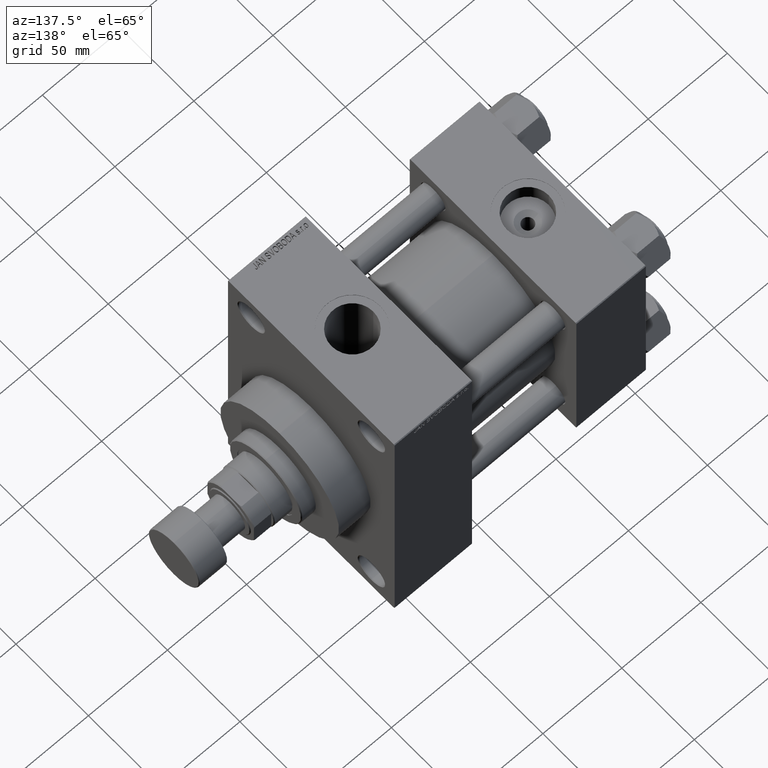
[diagram: clean part render]
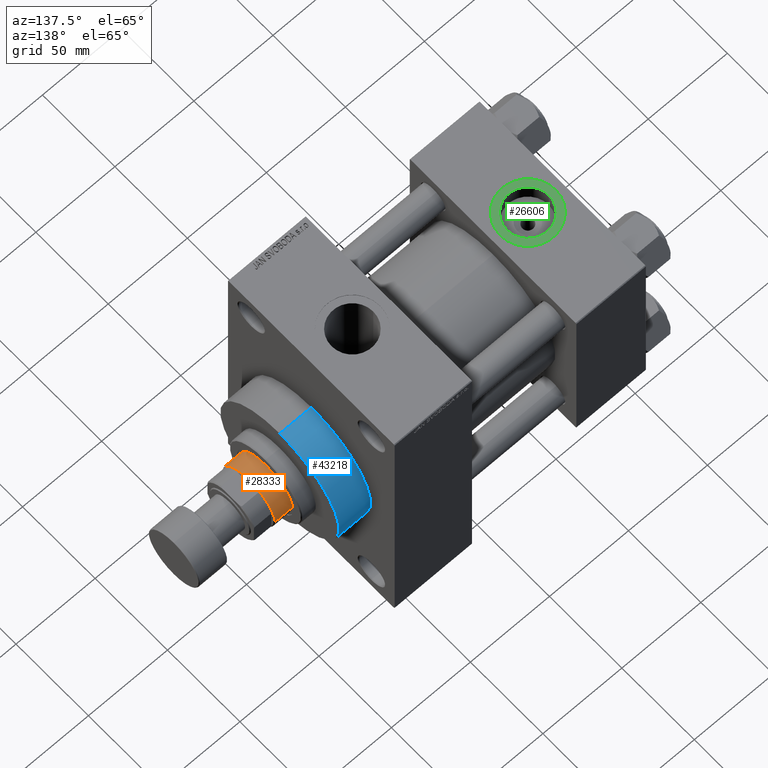
[diagram: same view with three faces highlighted in distinct colors, each labeled with its STEP entity id]
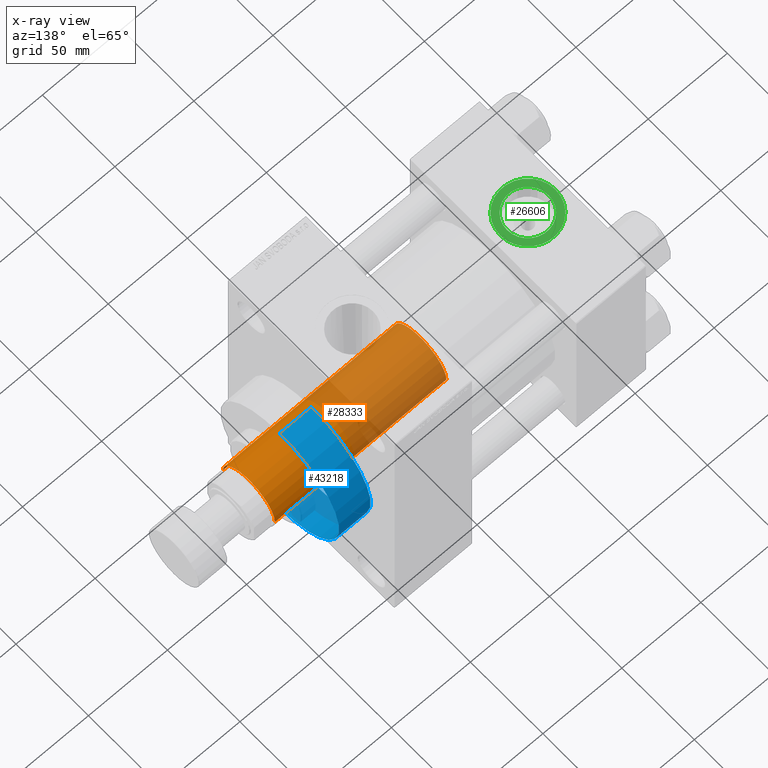
[diagram: x-ray of the same camera — body ghosted, the three highlighted faces saturated]
A machine part, auxiliary view with three faces highlighted in distinct colors.
The next image is the same camera in x-ray (body ghosted, the three faces saturated) — at least one of them is partly hidden behind the body in this view.
Their STEP definitions:

[orange] entity #28333 — the highlighted cylindrical surface (partial cylindrical patch) has radius 18 mm, axis along (-1, 0, 0).
#405 = AXIS2_PLACEMENT_3D ( 'NONE', #32501, #47346, #9447 ) ;
#2609 = EDGE_CURVE ( 'NONE', #6386, #29104, #22443, .T. ) ;
#2696 = CARTESIAN_POINT ( 'NONE',  ( 18.00000000000000000, 2.204364238465235428E-15, 154.4999999999999716 ) ) ;
#3330 = VERTEX_POINT ( 'NONE', #17178 ) ;
#6386 = VERTEX_POINT ( 'NONE', #21286 ) ;
#7199 = CARTESIAN_POINT ( 'NONE',  ( 0.000000000000000000, 0.000000000000000000, 46.00000000000000000 ) ) ;
#8961 = EDGE_CURVE ( 'NONE', #16678, #29104, #24636, .T. ) ;
#9447 = DIRECTION ( 'NONE',  ( -1.000000000000000000, 0.000000000000000000, 0.000000000000000000 ) ) ;
#9562 = DIRECTION ( 'NONE',  ( 0.000000000000000000, 0.000000000000000000, -1.000000000000000000 ) ) ;
#10032 = CARTESIAN_POINT ( 'NONE',  ( 0.000000000000000000, 0.000000000000000000, 154.4999999999999716 ) ) ;
#11083 = DIRECTION ( 'NONE',  ( 1.000000000000000000, 0.000000000000000000, 0.000000000000000000 ) ) ;
#13921 = DIRECTION ( 'NONE',  ( 1.000000000000000000, 0.000000000000000000, 0.000000000000000000 ) ) ;
#14223 = CARTESIAN_POINT ( 'NONE',  ( -18.00000000000000000, 0.000000000000000000, 155.0000000000000000 ) ) ;
#15757 = AXIS2_PLACEMENT_3D ( 'NONE', #10032, #9562, #13921 ) ;
#16678 = VERTEX_POINT ( 'NONE', #2696 ) ;
#17178 = CARTESIAN_POINT ( 'NONE',  ( -18.00000000000000000, 0.000000000000000000, 154.4999999999999716 ) ) ;
#20501 = CARTESIAN_POINT ( 'NONE',  ( 18.00000000000000000, 2.204364238465235428E-15, 155.0000000000000000 ) ) ;
#21286 = CARTESIAN_POINT ( 'NONE',  ( -18.00000000000000000, 0.000000000000000000, 46.00000000000000000 ) ) ;
#22443 = CIRCLE ( 'NONE', #39560, 18.00000000000000000 ) ;
#22510 = EDGE_CURVE ( 'NONE', #3330, #6386, #39324, .T. ) ;
#22625 = EDGE_LOOP ( 'NONE', ( #30221, #47905, #40308, #29988 ) ) ;
#22740 = EDGE_CURVE ( 'NONE', #16678, #3330, #32873, .T. ) ;
#24636 = LINE ( 'NONE', #20501, #47295 ) ;
#25353 = DIRECTION ( 'NONE',  ( -0.000000000000000000, -0.000000000000000000, -1.000000000000000000 ) ) ;
#28333 = ADVANCED_FACE ( 'NONE', ( #31610 ), #42813, .T. ) ;
#29001 = VECTOR ( 'NONE', #32033, 1000.000000000000000 ) ;
#29104 = VERTEX_POINT ( 'NONE', #42231 ) ;
#29824 = DIRECTION ( 'NONE',  ( 0.000000000000000000, 0.000000000000000000, 1.000000000000000000 ) ) ;
#29988 = ORIENTED_EDGE ( 'NONE', *, *, #2609, .T. ) ;
#30221 = ORIENTED_EDGE ( 'NONE', *, *, #8961, .F. ) ;
#31610 = FACE_OUTER_BOUND ( 'NONE', #22625, .T. ) ;
#32033 = DIRECTION ( 'NONE',  ( -0.000000000000000000, -0.000000000000000000, -1.000000000000000000 ) ) ;
#32501 = CARTESIAN_POINT ( 'NONE',  ( 0.000000000000000000, 0.000000000000000000, 155.0000000000000000 ) ) ;
#32873 = CIRCLE ( 'NONE', #15757, 18.00000000000000000 ) ;
#39324 = LINE ( 'NONE', #14223, #29001 ) ;
#39560 = AXIS2_PLACEMENT_3D ( 'NONE', #7199, #29824, #11083 ) ;
#40308 = ORIENTED_EDGE ( 'NONE', *, *, #22510, .T. ) ;
#42231 = CARTESIAN_POINT ( 'NONE',  ( 18.00000000000000000, 2.204364238465235428E-15, 46.00000000000000000 ) ) ;
#42813 = CYLINDRICAL_SURFACE ( 'NONE', #405, 18.00000000000000000 ) ;
#47295 = VECTOR ( 'NONE', #25353, 1000.000000000000000 ) ;
#47346 = DIRECTION ( 'NONE',  ( -0.000000000000000000, -0.000000000000000000, -1.000000000000000000 ) ) ;
#47905 = ORIENTED_EDGE ( 'NONE', *, *, #22740, .T. ) ;

[blue] entity #43218 — the highlighted cylindrical surface (partial cylindrical patch) has radius 41 mm, axis along (-1, -0, -0).
#1557 = CARTESIAN_POINT ( 'NONE',  ( 159.0000000000000000, 5.021051876504148963E-15, -41.00000000000000000 ) ) ;
#3089 = CARTESIAN_POINT ( 'NONE',  ( 159.0000000000000000, 0.000000000000000000, 0.000000000000000000 ) ) ;
#3569 = DIRECTION ( 'NONE',  ( 0.000000000000000000, 0.000000000000000000, -1.000000000000000000 ) ) ;
#3627 = EDGE_CURVE ( 'NONE', #8068, #28366, #47075, .T. ) ;
#5842 = VERTEX_POINT ( 'NONE', #46277 ) ;
#5865 = DIRECTION ( 'NONE',  ( -1.000000000000000000, -0.000000000000000000, -0.000000000000000000 ) ) ;
#6728 = DIRECTION ( 'NONE',  ( 1.000000000000000000, 0.000000000000000000, 0.000000000000000000 ) ) ;
#7125 = VERTEX_POINT ( 'NONE', #9247 ) ;
#8068 = VERTEX_POINT ( 'NONE', #41724 ) ;
#8912 = CIRCLE ( 'NONE', #14362, 41.00000000000000000 ) ;
#9247 = CARTESIAN_POINT ( 'NONE',  ( 179.0000000000000000, 0.000000000000000000, 41.00000000000000000 ) ) ;
#9907 = AXIS2_PLACEMENT_3D ( 'NONE', #28241, #5865, #24106 ) ;
#14184 = ORIENTED_EDGE ( 'NONE', *, *, #3627, .T. ) ;
#14362 = AXIS2_PLACEMENT_3D ( 'NONE', #33749, #44475, #37633 ) ;
#15887 = VECTOR ( 'NONE', #46431, 1000.000000000000000 ) ;
#17425 = LINE ( 'NONE', #46918, #15887 ) ;
#18956 = ORIENTED_EDGE ( 'NONE', *, *, #24938, .T. ) ;
#24106 = DIRECTION ( 'NONE',  ( 0.000000000000000000, 0.000000000000000000, 1.000000000000000000 ) ) ;
#24901 = CARTESIAN_POINT ( 'NONE',  ( 179.0000000000000000, 5.021051876504148963E-15, -41.00000000000000000 ) ) ;
#24938 = EDGE_CURVE ( 'NONE', #28366, #5842, #33744, .T. ) ;
#26608 = EDGE_CURVE ( 'NONE', #8068, #7125, #8912, .T. ) ;
#28241 = CARTESIAN_POINT ( 'NONE',  ( 179.0000000000000000, 0.000000000000000000, 0.000000000000000000 ) ) ;
#28366 = VERTEX_POINT ( 'NONE', #1557 ) ;
#32148 = EDGE_CURVE ( 'NONE', #7125, #5842, #17425, .T. ) ;
#32756 = ORIENTED_EDGE ( 'NONE', *, *, #32148, .F. ) ;
#33744 = CIRCLE ( 'NONE', #35308, 41.00000000000000000 ) ;
#33749 = CARTESIAN_POINT ( 'NONE',  ( 179.0000000000000000, 0.000000000000000000, 0.000000000000000000 ) ) ;
#35308 = AXIS2_PLACEMENT_3D ( 'NONE', #3089, #6728, #3569 ) ;
#36267 = FACE_OUTER_BOUND ( 'NONE', #36486, .T. ) ;
#36486 = EDGE_LOOP ( 'NONE', ( #36779, #14184, #18956, #32756 ) ) ;
#36779 = ORIENTED_EDGE ( 'NONE', *, *, #26608, .F. ) ;
#37633 = DIRECTION ( 'NONE',  ( 0.000000000000000000, 0.000000000000000000, -1.000000000000000000 ) ) ;
#38281 = VECTOR ( 'NONE', #39290, 1000.000000000000000 ) ;
#39290 = DIRECTION ( 'NONE',  ( -1.000000000000000000, -0.000000000000000000, -0.000000000000000000 ) ) ;
#39452 = CYLINDRICAL_SURFACE ( 'NONE', #9907, 41.00000000000000000 ) ;
#41724 = CARTESIAN_POINT ( 'NONE',  ( 179.0000000000000000, 5.021051876504148963E-15, -41.00000000000000000 ) ) ;
#43218 = ADVANCED_FACE ( 'NONE', ( #36267 ), #39452, .T. ) ;
#44475 = DIRECTION ( 'NONE',  ( 1.000000000000000000, 0.000000000000000000, 0.000000000000000000 ) ) ;
#46277 = CARTESIAN_POINT ( 'NONE',  ( 159.0000000000000000, 0.000000000000000000, 41.00000000000000000 ) ) ;
#46431 = DIRECTION ( 'NONE',  ( -1.000000000000000000, -0.000000000000000000, -0.000000000000000000 ) ) ;
#46918 = CARTESIAN_POINT ( 'NONE',  ( 179.0000000000000000, 0.000000000000000000, 41.00000000000000000 ) ) ;
#47075 = LINE ( 'NONE', #24901, #38281 ) ;

[green] entity #26606 — the highlighted planar face has unit normal (0, 0, 1).
#1326 = DIRECTION ( 'NONE',  ( 0.000000000000000000, 0.000000000000000000, 1.000000000000000000 ) ) ;
#2084 = CARTESIAN_POINT ( 'NONE',  ( 22.00000000000000000, -8.673617379884035472E-15, 57.30000000000000426 ) ) ;
#7010 = EDGE_CURVE ( 'NONE', #35744, #24402, #47228, .T. ) ;
#8177 = AXIS2_PLACEMENT_3D ( 'NONE', #2084, #42980, #16905 ) ;
#9556 = CARTESIAN_POINT ( 'NONE',  ( 22.00000000000000000, -8.673617379884035472E-15, 57.30000000000000426 ) ) ;
#9953 = EDGE_CURVE ( 'NONE', #12505, #30827, #41164, .T. ) ;
#10703 = EDGE_LOOP ( 'NONE', ( #17035, #37716 ) ) ;
#10798 = CARTESIAN_POINT ( 'NONE',  ( 4.499999999999997335, -6.530485481376167224E-15, 57.30000000000000426 ) ) ;
#12505 = VERTEX_POINT ( 'NONE', #22923 ) ;
#13563 = AXIS2_PLACEMENT_3D ( 'NONE', #18870, #18400, #47877 ) ;
#16150 = AXIS2_PLACEMENT_3D ( 'NONE', #25651, #36620, #21748 ) ;
#16905 = DIRECTION ( 'NONE',  ( 1.000000000000000000, 0.000000000000000000, 0.000000000000000000 ) ) ;
#17035 = ORIENTED_EDGE ( 'NONE', *, *, #7010, .T. ) ;
#18400 = DIRECTION ( 'NONE',  ( 0.000000000000000000, 0.000000000000000000, 1.000000000000000000 ) ) ;
#18870 = CARTESIAN_POINT ( 'NONE',  ( 22.00000000000000000, -8.673617379884035472E-15, 57.30000000000000426 ) ) ;
#21748 = DIRECTION ( 'NONE',  ( 1.000000000000000000, 0.000000000000000000, 0.000000000000000000 ) ) ;
#21833 = ORIENTED_EDGE ( 'NONE', *, *, #9953, .F. ) ;
#22151 = AXIS2_PLACEMENT_3D ( 'NONE', #9556, #39985, #35377 ) ;
#22923 = CARTESIAN_POINT ( 'NONE',  ( 8.779999999999994031, -7.054634311411234321E-15, 57.30000000000000426 ) ) ;
#23803 = ORIENTED_EDGE ( 'NONE', *, *, #27816, .F. ) ;
#24402 = VERTEX_POINT ( 'NONE', #10798 ) ;
#25651 = CARTESIAN_POINT ( 'NONE',  ( 22.00000000000000000, -8.673617379884035472E-15, 57.30000000000000426 ) ) ;
#26189 = FACE_BOUND ( 'NONE', #28590, .T. ) ;
#26606 = ADVANCED_FACE ( 'NONE', ( #26189, #29614 ), #40820, .T. ) ;
#26869 = DIRECTION ( 'NONE',  ( 1.000000000000000000, 0.000000000000000000, 0.000000000000000000 ) ) ;
#27816 = EDGE_CURVE ( 'NONE', #30827, #12505, #30745, .T. ) ;
#28590 = EDGE_LOOP ( 'NONE', ( #23803, #21833 ) ) ;
#29614 = FACE_OUTER_BOUND ( 'NONE', #10703, .T. ) ;
#30370 = CARTESIAN_POINT ( 'NONE',  ( 35.21999999999999886, -8.673617379884035472E-15, 57.30000000000000426 ) ) ;
#30745 = CIRCLE ( 'NONE', #22151, 13.22000000000000242 ) ;
#30827 = VERTEX_POINT ( 'NONE', #30370 ) ;
#31262 = CARTESIAN_POINT ( 'NONE',  ( 22.00000000000000000, -8.673617379884035472E-15, 57.30000000000000426 ) ) ;
#33153 = EDGE_CURVE ( 'NONE', #24402, #35744, #40833, .T. ) ;
#35377 = DIRECTION ( 'NONE',  ( 1.000000000000000000, 0.000000000000000000, 0.000000000000000000 ) ) ;
#35744 = VERTEX_POINT ( 'NONE', #42263 ) ;
#36620 = DIRECTION ( 'NONE',  ( 0.000000000000000000, 0.000000000000000000, 1.000000000000000000 ) ) ;
#37716 = ORIENTED_EDGE ( 'NONE', *, *, #33153, .T. ) ;
#39985 = DIRECTION ( 'NONE',  ( 0.000000000000000000, 0.000000000000000000, 1.000000000000000000 ) ) ;
#40820 = PLANE ( 'NONE',  #13563 ) ;
#40833 = CIRCLE ( 'NONE', #8177, 17.50000000000000000 ) ;
#41164 = CIRCLE ( 'NONE', #42694, 13.22000000000000242 ) ;
#42263 = CARTESIAN_POINT ( 'NONE',  ( 39.50000000000000000, -8.673617379884035472E-15, 57.30000000000000426 ) ) ;
#42694 = AXIS2_PLACEMENT_3D ( 'NONE', #31262, #1326, #26869 ) ;
#42980 = DIRECTION ( 'NONE',  ( 0.000000000000000000, 0.000000000000000000, 1.000000000000000000 ) ) ;
#47228 = CIRCLE ( 'NONE', #16150, 17.50000000000000000 ) ;
#47877 = DIRECTION ( 'NONE',  ( 1.000000000000000000, 0.000000000000000000, -0.000000000000000000 ) ) ;